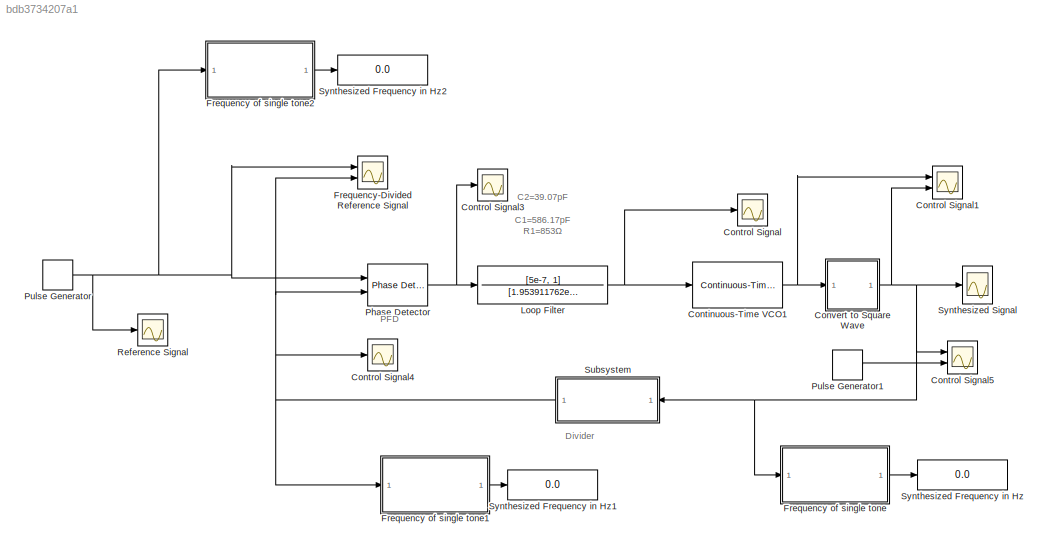
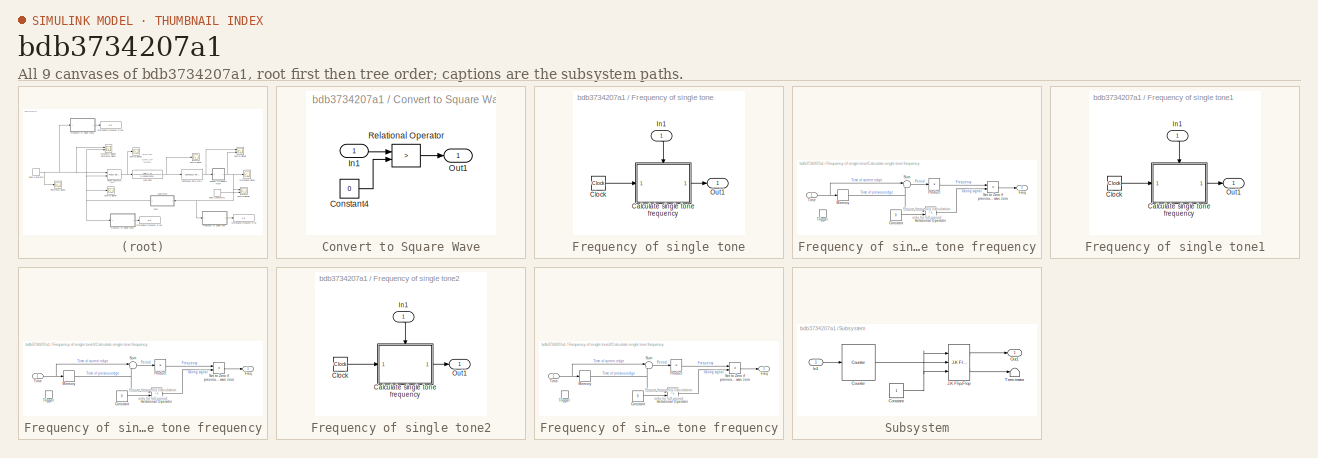
[diagram: thumbnail index - all 9 canvases of the model, root first then tree order]
MODEL slx_bdb3734207a1
KIND model
CONFIG AbsTol = auto
CONFIG EnableMultiTasking = off
CONFIG FixedStep = auto
CONFIG MaxStep = 2e-11
CONFIG MinStep = auto
CONFIG RelTol = 1e-3
CONFIG SampleTimeConstraint = Unconstrained
CONFIG Solver = VariableStepAuto
CONFIG SolverName = VariableStepAuto
CONFIG StartTime = 0.0
CONFIG StopTime = 0.0003
BLOCK [Reference] Continuous-Time VCO1  REF=commsynccomp2/Continuous-Time
VCO
  Ports = [1, 1]
  SourceBlock = commsynccomp2/Continuous-Time\nVCO
  SourceProductBaseCode = CM
  SourceProductName = Communications System Toolbox
  SourceType = Continuous-Time VCO
BLOCK [Scope] Control Signal
  Floating = off
  NumInputPorts = 1
  Ports = [1]
  ScopeSpecificationString = Simulink.scopes.TimeScopeBlockCfg('CurrentConfiguration', extmgr.ConfigurationSet(extmgr.Configuration('Core','General UI',true),extmgr.Configuration('Core','Source UI',true),extmgr.Configuration('Sources','WiredSimulink',true,'DataLoggingSaveFormat','Array','DataLoggingDecimation','1','DataLoggingDecimateData',true),extmgr.Configuration('Visuals','Time Domain',true,'SerializedDisplays',{struct('M...<+1985ch>
BLOCK [Scope] Control Signal1
  Floating = off
  NumInputPorts = 2
  Ports = [2]
  ScopeSpecificationString = Simulink.scopes.TimeScopeBlockCfg('CurrentConfiguration', extmgr.ConfigurationSet(extmgr.Configuration('Core','General UI',true),extmgr.Configuration('Core','Source UI',true),extmgr.Configuration('Sources','WiredSimulink',true,'DataLoggingSaveFormat','Array','DataLoggingDecimation','1','DataLoggingDecimateData',true),extmgr.Configuration('Visuals','Time Domain',true,'SerializedDisplays',{struct('M...<+2032ch>
BLOCK [Scope] Control Signal3
  Floating = off
  NumInputPorts = 1
  Ports = [1]
  ScopeSpecificationString = Simulink.scopes.TimeScopeBlockCfg('CurrentConfiguration', extmgr.ConfigurationSet(extmgr.Configuration('Core','General UI',true),extmgr.Configuration('Core','Source UI',true),extmgr.Configuration('Sources','WiredSimulink',true,'DataLoggingVariableName','ScopeData1','DataLoggingSaveFormat','Array','DataLoggingDecimation','1','DataLoggingDecimateData',true),extmgr.Configuration('Visuals','Time Domai...<+1564ch>
BLOCK [Scope] Control Signal4
  Floating = off
  NumInputPorts = 1
  Ports = [1]
  ScopeSpecificationString = Simulink.scopes.TimeScopeBlockCfg('CurrentConfiguration', extmgr.ConfigurationSet(extmgr.Configuration('Core','General UI',true),extmgr.Configuration('Core','Source UI',true),extmgr.Configuration('Sources','WiredSimulink',true,'DataLoggingVariableName','ScopeData1','DataLoggingSaveFormat','Array','DataLoggingDecimation','1','DataLoggingDecimateData',true),extmgr.Configuration('Visuals','Time Domai...<+1556ch>
BLOCK [Scope] Control Signal5
  Floating = off
  NumInputPorts = 2
  Ports = [2]
  ScopeSpecificationString = Simulink.scopes.TimeScopeBlockCfg('CurrentConfiguration', extmgr.ConfigurationSet(extmgr.Configuration('Core','General UI',true),extmgr.Configuration('Core','Source UI',true),extmgr.Configuration('Sources','WiredSimulink',true,'DataLoggingSaveFormat','Array','DataLoggingDecimation','1','DataLoggingDecimateData',true,'DataLoggingVariableName','ScopeData1'),extmgr.Configuration('Visuals','Time Domai...<+2702ch>
BLOCK [SubSystem] Convert to Square Wave
  Ports = [1, 1]
  RequestExecContextInheritance = off
BLOCK [Constant] Convert to Square Wave/Constant4
  Value = 0
BLOCK [Inport] Convert to Square Wave/In1
  IconDisplay = Port number
BLOCK [Outport] Convert to Square Wave/Out1
  IconDisplay = Port number
BLOCK [RelationalOperator] Convert to Square Wave/Relational Operator
  Operator = >
  Ports = [2, 1]
BLOCK [SubSystem] Frequency of single tone
  Ports = [1, 1]
  RequestExecContextInheritance = off
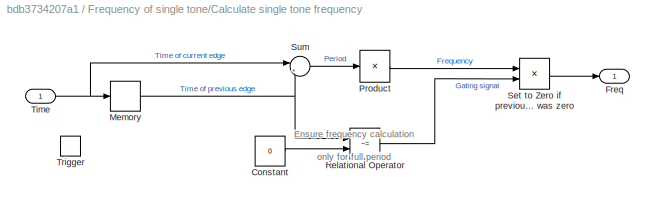
BLOCK [SubSystem] Frequency of single tone/Calculate single tone frequency
  Ports = [1, 1, 0, 1]
  RequestExecContextInheritance = off
  TreatAsAtomicUnit = on
BLOCK [Constant] Frequency of single tone/Calculate single tone frequency/Constant
  Value = 0
BLOCK [Outport] Frequency of single tone/Calculate single tone frequency/Freq
  IconDisplay = Port number
  InitialOutput = 0
BLOCK [Memory] Frequency of single tone/Calculate single tone frequency/Memory
  InheritSampleTime = on
BLOCK [Product] Frequency of single tone/Calculate single tone frequency/Product
  Inputs = /
  Ports = [1, 1]
  RndMeth = Floor
BLOCK [RelationalOperator] Frequency of single tone/Calculate single tone frequency/Relational Operator
  Operator = ~=
  Ports = [2, 1]
BLOCK [Product] Frequency of single tone/Calculate single tone frequency/Set to Zero if previous time was zero
  Ports = [2, 1]
  RndMeth = Floor
BLOCK [Sum] Frequency of single tone/Calculate single tone frequency/Sum
  IconShape = round
  Inputs = |+-
  Ports = [2, 1]
BLOCK [Inport] Frequency of single tone/Calculate single tone frequency/Time
  IconDisplay = Port number
BLOCK [TriggerPort] Frequency of single tone/Calculate single tone frequency/Trigger
  Ports = []
  VariantControl = Variant
  ZeroCross = off
BLOCK [Clock] Frequency of single tone/Clock
  Decimation = 1
BLOCK [Inport] Frequency of single tone/In1
  IconDisplay = Port number
BLOCK [Outport] Frequency of single tone/Out1
  IconDisplay = Port number
BLOCK [SubSystem] Frequency of single tone1
  Ports = [1, 1]
  RequestExecContextInheritance = off
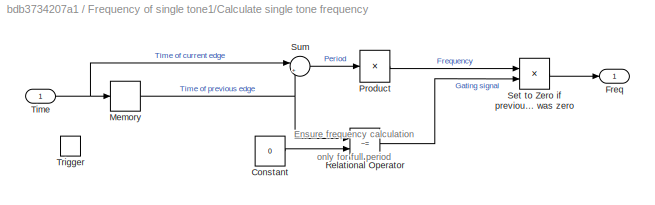
BLOCK [SubSystem] Frequency of single tone1/Calculate single tone frequency
  Ports = [1, 1, 0, 1]
  RequestExecContextInheritance = off
  TreatAsAtomicUnit = on
BLOCK [Constant] Frequency of single tone1/Calculate single tone frequency/Constant
  Value = 0
BLOCK [Outport] Frequency of single tone1/Calculate single tone frequency/Freq
  IconDisplay = Port number
  InitialOutput = 0
BLOCK [Memory] Frequency of single tone1/Calculate single tone frequency/Memory
  InheritSampleTime = on
BLOCK [Product] Frequency of single tone1/Calculate single tone frequency/Product
  Inputs = /
  Ports = [1, 1]
  RndMeth = Floor
BLOCK [RelationalOperator] Frequency of single tone1/Calculate single tone frequency/Relational Operator
  Operator = ~=
  Ports = [2, 1]
BLOCK [Product] Frequency of single tone1/Calculate single tone frequency/Set to Zero if previous time was zero
  Ports = [2, 1]
  RndMeth = Floor
BLOCK [Sum] Frequency of single tone1/Calculate single tone frequency/Sum
  IconShape = round
  Inputs = |+-
  Ports = [2, 1]
BLOCK [Inport] Frequency of single tone1/Calculate single tone frequency/Time
  IconDisplay = Port number
BLOCK [TriggerPort] Frequency of single tone1/Calculate single tone frequency/Trigger
  Ports = []
  VariantControl = Variant
  ZeroCross = off
BLOCK [Clock] Frequency of single tone1/Clock
  Decimation = 1
BLOCK [Inport] Frequency of single tone1/In1
  IconDisplay = Port number
BLOCK [Outport] Frequency of single tone1/Out1
  IconDisplay = Port number
BLOCK [SubSystem] Frequency of single tone2
  Ports = [1, 1]
  RequestExecContextInheritance = off
BLOCK [SubSystem] Frequency of single tone2/Calculate single tone frequency
  Ports = [1, 1, 0, 1]
  RequestExecContextInheritance = off
  TreatAsAtomicUnit = on
BLOCK [Constant] Frequency of single tone2/Calculate single tone frequency/Constant
  Value = 0
BLOCK [Outport] Frequency of single tone2/Calculate single tone frequency/Freq
  IconDisplay = Port number
  InitialOutput = 0
BLOCK [Memory] Frequency of single tone2/Calculate single tone frequency/Memory
  InheritSampleTime = on
BLOCK [Product] Frequency of single tone2/Calculate single tone frequency/Product
  Inputs = /
  Ports = [1, 1]
  RndMeth = Floor
BLOCK [RelationalOperator] Frequency of single tone2/Calculate single tone frequency/Relational Operator
  Operator = ~=
  Ports = [2, 1]
BLOCK [Product] Frequency of single tone2/Calculate single tone frequency/Set to Zero if previous time was zero
  Ports = [2, 1]
  RndMeth = Floor
BLOCK [Sum] Frequency of single tone2/Calculate single tone frequency/Sum
  IconShape = round
  Inputs = |+-
  Ports = [2, 1]
BLOCK [Inport] Frequency of single tone2/Calculate single tone frequency/Time
  IconDisplay = Port number
BLOCK [TriggerPort] Frequency of single tone2/Calculate single tone frequency/Trigger
  Ports = []
  VariantControl = Variant
  ZeroCross = off
BLOCK [Clock] Frequency of single tone2/Clock
  Decimation = 1
BLOCK [Inport] Frequency of single tone2/In1
  IconDisplay = Port number
BLOCK [Outport] Frequency of single tone2/Out1
  IconDisplay = Port number
BLOCK [Scope] Frequency-Divided Reference Signal
  Floating = off
  NumInputPorts = 2
  Ports = [2]
  ScopeSpecificationString = Simulink.scopes.TimeScopeBlockCfg('CurrentConfiguration', extmgr.ConfigurationSet(extmgr.Configuration('Core','General UI',true),extmgr.Configuration('Core','Source UI',true),extmgr.Configuration('Sources','WiredSimulink',true,'DataLoggingSaveFormat','Array','DataLoggingDecimation','1','DataLoggingDecimateData',true),extmgr.Configuration('Visuals','Time Domain',true,'SerializedDisplays',{struct('M...<+1926ch>
BLOCK [TransferFcn] Loop Filter
  Denominator = [1.953911762e-17, 625.248e-12, 0]
  Numerator = [5e-7, 1]
BLOCK [Reference] Phase Detector  REF=commsynccomp2/Charge Pump
PLL/Phase
Detector
  Ports = [2, 1]
  SourceBlock = commsynccomp2/Charge Pump\nPLL/Phase\nDetector
  SourceProductBaseCode = CM
  SourceProductName = Communications System Toolbox
  SourceType = Phase Detector
BLOCK [DiscretePulseGenerator] Pulse Generator
  Period = 1/(13.56e6)
  Ports = [0, 1]
  PulseType = Time based
  PulseWidth = 50
BLOCK [DiscretePulseGenerator] Pulse Generator1
  Period = 1/(432e6)
  Ports = [0, 1]
  PulseType = Time based
  PulseWidth = 50
BLOCK [Scope] Reference Signal
  Floating = off
  NumInputPorts = 1
  Ports = [1]
  ScopeSpecificationString = Simulink.scopes.TimeScopeBlockCfg('CurrentConfiguration', extmgr.ConfigurationSet(extmgr.Configuration('Core','General UI',true),extmgr.Configuration('Core','Source UI',true),extmgr.Configuration('Sources','WiredSimulink',true,'DataLoggingSaveFormat','Array','DataLoggingDecimation','1','DataLoggingDecimateData',true),extmgr.Configuration('Visuals','Time Domain',true,'SerializedDisplays',{struct('M...<+1599ch>
BLOCK [SubSystem] Subsystem
  Ports = [1, 1]
  RequestExecContextInheritance = off
  Tag = Divider
BLOCK [Constant] Subsystem/Constant
BLOCK [Reference] Subsystem/Counter  REF=dspswit3/Counter
  Ports = [1, 1]
  SourceBlock = dspswit3/Counter
  SourceProductBaseCode = DS
  SourceProductName = DSP System Toolbox
  SourceType = Counter
BLOCK [Inport] Subsystem/In1
  IconDisplay = Port number
BLOCK [Reference] Subsystem/J-K Flip-Flop  REF=simulink_extras/Flip Flops/J-K
Flip-Flop
  Ports = [3, 2]
  SourceBlock = simulink_extras/Flip Flops/J-K\nFlip-Flop
  SourceProductBaseCode = SL
  SourceProductName = Simulink
  SourceType = JKFlipFlop
BLOCK [Outport] Subsystem/Out1
  IconDisplay = Port number
BLOCK [Terminator] Subsystem/Terminator
BLOCK [Display] Synthesized Frequency in Hz
  Decimation = 1
  Ports = [1]
BLOCK [Display] Synthesized Frequency in Hz1
  Decimation = 1
  Ports = [1]
BLOCK [Display] Synthesized Frequency in Hz2
  Decimation = 1
  Ports = [1]
BLOCK [Scope] Synthesized Signal
  Floating = off
  NumInputPorts = 1
  Ports = [1]
  ScopeSpecificationString = Simulink.scopes.TimeScopeBlockCfg('CurrentConfiguration', extmgr.ConfigurationSet(extmgr.Configuration('Core','General UI',true),extmgr.Configuration('Core','Source UI',true),extmgr.Configuration('Sources','WiredSimulink',true,'DataLoggingSaveFormat','Array','DataLoggingDecimation','1','DataLoggingDecimateData',true),extmgr.Configuration('Visuals','Time Domain',true,'SerializedDisplays',{struct('M...<+1949ch>
ANNOTATION (root): C2=39.07pF C1=586.17pF R1=853Ω
ANNOTATION (root): Divider
ANNOTATION (root): PFD
ANNOTATION Frequency of single tone/Calculate single tone frequency: Ensure frequency calculation only for full period
ANNOTATION Frequency of single tone1/Calculate single tone frequency: Ensure frequency calculation only for full period
ANNOTATION Frequency of single tone2/Calculate single tone frequency: Ensure frequency calculation only for full period
NET Continuous-Time VCO1:1 -> Control Signal1:1, Convert to Square Wave:1
LINE Convert to Square Wave/Constant4:1 -> Convert to Square Wave/Relational Operator:2
LINE Convert to Square Wave/In1:1 -> Convert to Square Wave/Relational Operator:1
LINE Convert to Square Wave/Relational Operator:1 -> Convert to Square Wave/Out1:1
NET Convert to Square Wave:1 -> Control Signal1:2, Control Signal5:1, Frequency of single tone:1, Subsystem:1, Synthesized Signal:1
LINE Frequency of single tone/Calculate single tone frequency/Constant:1 -> Frequency of single tone/Calculate single tone frequency/Relational Operator:2
NET Frequency of single tone/Calculate single tone frequency/Memory:1 -> Frequency of single tone/Calculate single tone frequency/Relational Operator:1, Frequency of single tone/Calculate single tone frequency/Sum:2
LINE Frequency of single tone/Calculate single tone frequency/Product:1 -> Frequency of single tone/Calculate single tone frequency/Set to Zero if previous time was zero:1
LINE Frequency of single tone/Calculate single tone frequency/Relational Operator:1 -> Frequency of single tone/Calculate single tone frequency/Set to Zero if previous time was zero:2
LINE Frequency of single tone/Calculate single tone frequency/Set to Zero if previous time was zero:1 -> Frequency of single tone/Calculate single tone frequency/Freq:1
LINE Frequency of single tone/Calculate single tone frequency/Sum:1 -> Frequency of single tone/Calculate single tone frequency/Product:1
NET Frequency of single tone/Calculate single tone frequency/Time:1 -> Frequency of single tone/Calculate single tone frequency/Memory:1, Frequency of single tone/Calculate single tone frequency/Sum:1
LINE Frequency of single tone/Calculate single tone frequency:1 -> Frequency of single tone/Out1:1
LINE Frequency of single tone/Clock:1 -> Frequency of single tone/Calculate single tone frequency:1
LINE Frequency of single tone/In1:1 -> Frequency of single tone/Calculate single tone frequency:trigger
LINE Frequency of single tone1/Calculate single tone frequency/Constant:1 -> Frequency of single tone1/Calculate single tone frequency/Relational Operator:2
NET Frequency of single tone1/Calculate single tone frequency/Memory:1 -> Frequency of single tone1/Calculate single tone frequency/Relational Operator:1, Frequency of single tone1/Calculate single tone frequency/Sum:2
LINE Frequency of single tone1/Calculate single tone frequency/Product:1 -> Frequency of single tone1/Calculate single tone frequency/Set to Zero if previous time was zero:1
LINE Frequency of single tone1/Calculate single tone frequency/Relational Operator:1 -> Frequency of single tone1/Calculate single tone frequency/Set to Zero if previous time was zero:2
LINE Frequency of single tone1/Calculate single tone frequency/Set to Zero if previous time was zero:1 -> Frequency of single tone1/Calculate single tone frequency/Freq:1
LINE Frequency of single tone1/Calculate single tone frequency/Sum:1 -> Frequency of single tone1/Calculate single tone frequency/Product:1
NET Frequency of single tone1/Calculate single tone frequency/Time:1 -> Frequency of single tone1/Calculate single tone frequency/Memory:1, Frequency of single tone1/Calculate single tone frequency/Sum:1
LINE Frequency of single tone1/Calculate single tone frequency:1 -> Frequency of single tone1/Out1:1
LINE Frequency of single tone1/Clock:1 -> Frequency of single tone1/Calculate single tone frequency:1
LINE Frequency of single tone1/In1:1 -> Frequency of single tone1/Calculate single tone frequency:trigger
LINE Frequency of single tone1:1 -> Synthesized Frequency in Hz1:1
LINE Frequency of single tone2/Calculate single tone frequency/Constant:1 -> Frequency of single tone2/Calculate single tone frequency/Relational Operator:2
NET Frequency of single tone2/Calculate single tone frequency/Memory:1 -> Frequency of single tone2/Calculate single tone frequency/Relational Operator:1, Frequency of single tone2/Calculate single tone frequency/Sum:2
LINE Frequency of single tone2/Calculate single tone frequency/Product:1 -> Frequency of single tone2/Calculate single tone frequency/Set to Zero if previous time was zero:1
LINE Frequency of single tone2/Calculate single tone frequency/Relational Operator:1 -> Frequency of single tone2/Calculate single tone frequency/Set to Zero if previous time was zero:2
LINE Frequency of single tone2/Calculate single tone frequency/Set to Zero if previous time was zero:1 -> Frequency of single tone2/Calculate single tone frequency/Freq:1
LINE Frequency of single tone2/Calculate single tone frequency/Sum:1 -> Frequency of single tone2/Calculate single tone frequency/Product:1
NET Frequency of single tone2/Calculate single tone frequency/Time:1 -> Frequency of single tone2/Calculate single tone frequency/Memory:1, Frequency of single tone2/Calculate single tone frequency/Sum:1
LINE Frequency of single tone2/Calculate single tone frequency:1 -> Frequency of single tone2/Out1:1
LINE Frequency of single tone2/Clock:1 -> Frequency of single tone2/Calculate single tone frequency:1
LINE Frequency of single tone2/In1:1 -> Frequency of single tone2/Calculate single tone frequency:trigger
LINE Frequency of single tone2:1 -> Synthesized Frequency in Hz2:1
LINE Frequency of single tone:1 -> Synthesized Frequency in Hz:1
NET Loop Filter:1 -> Continuous-Time VCO1:1, Control Signal:1
NET Phase Detector:1 -> Control Signal3:1, Loop Filter:1
LINE Pulse Generator1:1 -> Control Signal5:2
NET Pulse Generator:1 -> Frequency of single tone2:1, Frequency-Divided Reference Signal:1, Phase Detector:1, Reference Signal:1
NET Subsystem/Constant:1 -> Subsystem/J-K Flip-Flop:1, Subsystem/J-K Flip-Flop:3
LINE Subsystem/Counter:1 -> Subsystem/J-K Flip-Flop:2
LINE Subsystem/In1:1 -> Subsystem/Counter:1
LINE Subsystem/J-K Flip-Flop:1 -> Subsystem/Out1:1
LINE Subsystem/J-K Flip-Flop:2 -> Subsystem/Terminator:1
NET Subsystem:1 -> Control Signal4:1, Frequency of single tone1:1, Frequency-Divided Reference Signal:2, Phase Detector:2
note: NET lines group one-source signal fan-out (src -> all destinations, sorted); 1:1 wires keep LINE
